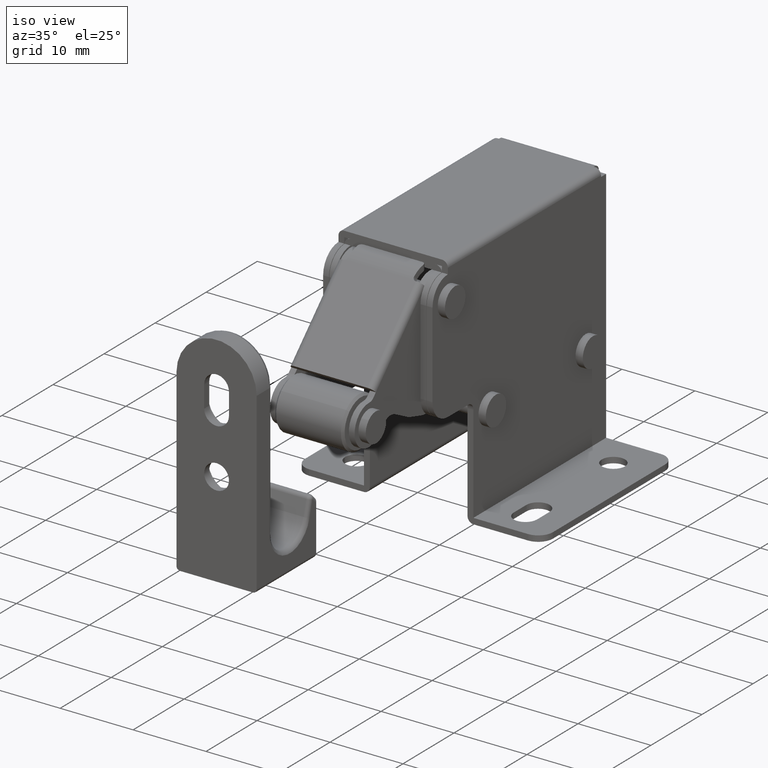
[diagram: clean part render]
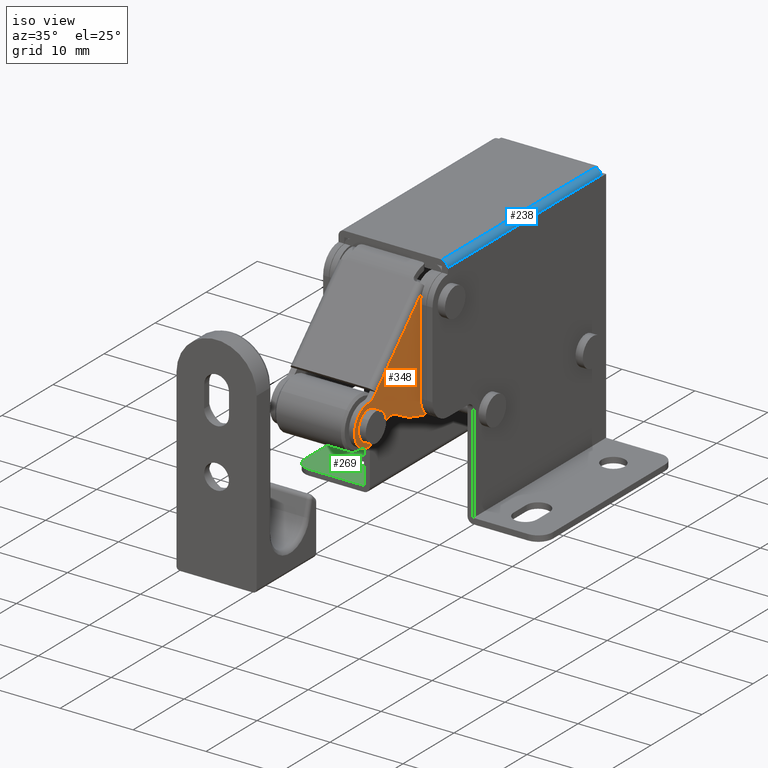
[diagram: same view with three faces highlighted in distinct colors, each labeled with its STEP entity id]
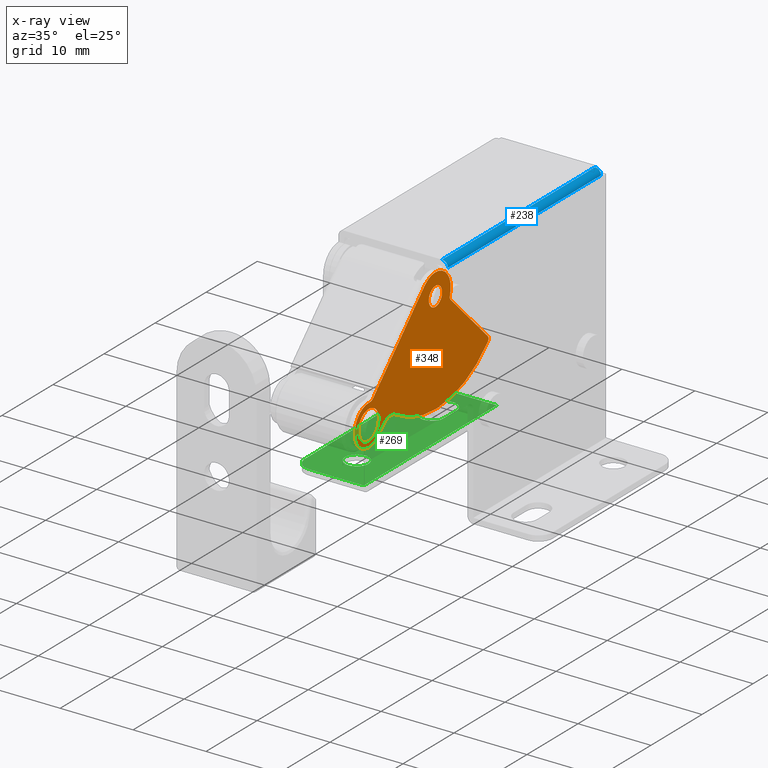
[diagram: x-ray of the same camera — body ghosted, the three highlighted faces saturated]
A machine part, iso view with three faces highlighted in distinct colors.
The next image is the same camera in x-ray (body ghosted, the three faces saturated) — at least one of them is partly hidden behind the body in this view.
Their STEP definitions:

[orange] entity #348 — the highlighted planar face has unit normal (-1, -0, -0).
#348=ADVANCED_FACE('',(#1792,#1793,#1794),#1791,.F.);
#1791=PLANE('',#4073);
#1792=FACE_OUTER_BOUND('',#4074,.T.);
#1793=FACE_BOUND('',#4075,.T.);
#1794=FACE_BOUND('',#4076,.T.);
#4070=CARTESIAN_POINT('',(5.80000000000E+00,-6.71192456954E+00,-1.80209946678E+01));
#4071=DIRECTION('',(-1.00000000000E+00,0.00000000000E+00,0.00000000000E+00));
#4072=DIRECTION('',(0.00000000000E+00,0.00000000000E+00,1.00000000000E+00));
#4073=AXIS2_PLACEMENT_3D('',#4070,#4071,#4072);
#4074=EDGE_LOOP('',(#5729,#5730,#5731,#5732,#5733,#5734,#5735,#5736,#5737,#5738,#5739));
#4075=EDGE_LOOP('',(#5740,#5741));
#4076=EDGE_LOOP('',(#5742,#5743));
#5729=ORIENTED_EDGE('',*,*,#6878,.T.);
#5730=ORIENTED_EDGE('',*,*,#6865,.T.);
#5731=ORIENTED_EDGE('',*,*,#6879,.T.);
#5732=ORIENTED_EDGE('',*,*,#6861,.T.);
#5733=ORIENTED_EDGE('',*,*,#6880,.T.);
#5734=ORIENTED_EDGE('',*,*,#6852,.T.);
#5735=ORIENTED_EDGE('',*,*,#6881,.T.);
#5736=ORIENTED_EDGE('',*,*,#6844,.T.);
#5737=ORIENTED_EDGE('',*,*,#6882,.T.);
#5738=ORIENTED_EDGE('',*,*,#6883,.T.);
#5739=ORIENTED_EDGE('',*,*,#6855,.T.);
#5740=ORIENTED_EDGE('',*,*,#6884,.F.);
#5741=ORIENTED_EDGE('',*,*,#6885,.F.);
#5742=ORIENTED_EDGE('',*,*,#6886,.T.);
#5743=ORIENTED_EDGE('',*,*,#6887,.T.);
#6844=EDGE_CURVE('',#9506,#9499,#9507,.T.);
#6852=EDGE_CURVE('',#9538,#9552,#9559,.T.);
#6855=EDGE_CURVE('',#9580,#9573,#9581,.T.);
#6861=EDGE_CURVE('',#9620,#9613,#9621,.T.);
#6865=EDGE_CURVE('',#9648,#9641,#9649,.T.);
#6878=EDGE_CURVE('',#9573,#9648,#9735,.T.);
#6879=EDGE_CURVE('',#9641,#9620,#9741,.T.);
#6880=EDGE_CURVE('',#9613,#9538,#9747,.T.);
#6881=EDGE_CURVE('',#9552,#9506,#9753,.T.);
#6882=EDGE_CURVE('',#9499,#9759,#9760,.T.);
#6883=EDGE_CURVE('',#9759,#9580,#9766,.T.);
#6884=EDGE_CURVE('',#9772,#9773,#9774,.T.);
#6885=EDGE_CURVE('',#9773,#9772,#9780,.T.);
#6886=EDGE_CURVE('',#9786,#9787,#9788,.T.);
#6887=EDGE_CURVE('',#9787,#9786,#9794,.T.);
#9499=VERTEX_POINT('',#13408);
#9506=VERTEX_POINT('',#13412);
#9507=CIRCLE('',#13416,1.00000000000E+00);
#9538=VERTEX_POINT('',#13432);
#9552=VERTEX_POINT('',#13441);
#9559=LINE('',#13446,#13447);
#9573=VERTEX_POINT('',#13455);
#9580=VERTEX_POINT('',#13459);
#9581=CIRCLE('',#13463,2.00000000000E+00);
#9613=VERTEX_POINT('',#13479);
#9620=VERTEX_POINT('',#13483);
#9621=CIRCLE('',#13487,5.00000000000E-01);
#9641=VERTEX_POINT('',#13497);
#9648=VERTEX_POINT('',#13501);
#9649=CIRCLE('',#13505,5.00000000000E-01);
#9735=CIRCLE('',#13561,1.40000000000E+01);
#9741=LINE('',#13562,#13563);
#9747=CIRCLE('',#13568,3.00000000000E+00);
#9753=LINE('',#13569,#13570);
#9759=VERTEX_POINT('',#13572);
#9760=CIRCLE('',#13576,2.75000000000E+00);
#9766=LINE('',#13577,#13578);
#9772=VERTEX_POINT('',#13580);
#9773=VERTEX_POINT('',#13581);
#9774=CIRCLE('',#13585,1.30000000000E+00);
#9780=CIRCLE('',#13589,1.30000000000E+00);
#9786=VERTEX_POINT('',#13590);
#9787=VERTEX_POINT('',#13591);
#9788=CIRCLE('',#13595,2.00000000000E+00);
#9794=CIRCLE('',#13599,2.00000000000E+00);
#13408=CARTESIAN_POINT('',(5.80000000000E+00,2.04972897937E+00,1.83333333333E+00));
#13412=CARTESIAN_POINT('',(5.80000000000E+00,2.79508497187E+00,1.50000000000E+00));
#13413=CARTESIAN_POINT('',(5.80000000000E+00,2.79508497187E+00,2.50000000000E+00));
#13414=DIRECTION('',(-1.00000000000E+00,0.00000000000E+00,0.00000000000E+00));
#13415=DIRECTION('',(-0.00000000000E+00,-0.00000000000E+00,-1.00000000000E+00));
#13416=AXIS2_PLACEMENT_3D('',#13413,#13414,#13415);
#13432=CARTESIAN_POINT('',(5.80000000000E+00,1.70000000000E+01,1.50000000000E+00));
#13441=CARTESIAN_POINT('',(5.80000000000E+00,3.50000000000E+00,1.50000000000E+00));
#13446=CARTESIAN_POINT('',(5.80000000000E+00,1.70000000000E+01,1.50000000000E+00));
#13447=VECTOR('',#13448,1.35000000000E+01);
#13448=DIRECTION('',(0.00000000000E+00,-1.00000000000E+00,0.00000000000E+00));
#13455=CARTESIAN_POINT('',(5.80000000000E+00,3.29186059534E+00,-4.34375000000E+00));
#13459=CARTESIAN_POINT('',(5.80000000000E+00,1.33355496611E+00,-2.75000000000E+00));
#13460=CARTESIAN_POINT('',(5.80000000000E+00,1.33355496611E+00,-4.75000000000E+00));
#13461=DIRECTION('',(-1.00000000000E+00,0.00000000000E+00,0.00000000000E+00));
#13462=DIRECTION('',(-0.00000000000E+00,-0.00000000000E+00,-1.00000000000E+00));
#13463=AXIS2_PLACEMENT_3D('',#13460,#13461,#13462);
#13479=CARTESIAN_POINT('',(5.80000000000E+00,1.82857142857E+01,-4.21052370872E+00));
#13483=CARTESIAN_POINT('',(5.80000000000E+00,1.80000000000E+01,-4.66227766017E+00));
#13484=CARTESIAN_POINT('',(5.80000000000E+00,1.85000000000E+01,-4.66227766017E+00));
#13485=DIRECTION('',(-1.00000000000E+00,0.00000000000E+00,0.00000000000E+00));
#13486=DIRECTION('',(-0.00000000000E+00,-0.00000000000E+00,-1.00000000000E+00));
#13487=AXIS2_PLACEMENT_3D('',#13484,#13485,#13486);
#13497=CARTESIAN_POINT('',(5.80000000000E+00,1.80000000000E+01,-1.49907375632E+01));
#13501=CARTESIAN_POINT('',(5.80000000000E+00,1.75185185185E+01,-1.54903945100E+01));
#13502=CARTESIAN_POINT('',(5.80000000000E+00,1.75000000000E+01,-1.49907375632E+01));
#13503=DIRECTION('',(1.00000000000E+00,0.00000000000E+00,-0.00000000000E+00));
#13504=DIRECTION('',(-0.00000000000E+00,-0.00000000000E+00,-1.00000000000E+00));
#13505=AXIS2_PLACEMENT_3D('',#13502,#13503,#13504);
#13558=CARTESIAN_POINT('',(5.80000000000E+00,1.70000000000E+01,-1.50000000000E+00));
#13559=DIRECTION('',(1.00000000000E+00,0.00000000000E+00,0.00000000000E+00));
#13560=DIRECTION('',(-0.00000000000E+00,-0.00000000000E+00,1.00000000000E+00));
#13561=AXIS2_PLACEMENT_3D('',#13558,#13559,#13560);
#13562=CARTESIAN_POINT('',(5.80000000000E+00,1.80000000000E+01,-1.49907375632E+01));
#13563=VECTOR('',#13564,1.03284599031E+01);
#13564=DIRECTION('',(0.00000000000E+00,0.00000000000E+00,1.00000000000E+00));
#13565=CARTESIAN_POINT('',(5.80000000000E+00,1.70000000000E+01,-1.50000000000E+00));
#13566=DIRECTION('',(1.00000000000E+00,0.00000000000E+00,0.00000000000E+00));
#13567=DIRECTION('',(-0.00000000000E+00,-0.00000000000E+00,1.00000000000E+00));
#13568=AXIS2_PLACEMENT_3D('',#13565,#13566,#13567);
#13569=CARTESIAN_POINT('',(5.80000000000E+00,3.50000000000E+00,1.50000000000E+00));
#13570=VECTOR('',#13571,7.04915028125E-01);
#13571=DIRECTION('',(0.00000000000E+00,-1.00000000000E+00,0.00000000000E+00));
#13572=CARTESIAN_POINT('',(5.80000000000E+00,-5.05166804648E-16,-2.75000000000E+00));
#13573=CARTESIAN_POINT('',(5.80000000000E+00,0.00000000000E+00,0.00000000000E+00));
#13574=DIRECTION('',(1.00000000000E+00,0.00000000000E+00,0.00000000000E+00));
#13575=DIRECTION('',(-0.00000000000E+00,7.45355992500E-01,6.66666666667E-01));
#13576=AXIS2_PLACEMENT_3D('',#13573,#13574,#13575);
#13577=CARTESIAN_POINT('',(5.80000000000E+00,-5.05166804648E-16,-2.75000000000E+00));
#13578=VECTOR('',#13579,1.33355496611E+00);
#13579=DIRECTION('',(0.00000000000E+00,1.00000000000E+00,0.00000000000E+00));
#13580=CARTESIAN_POINT('',(5.79999999999E+00,1.70000000000E+01,-2.80000000000E+00));
#13581=CARTESIAN_POINT('',(5.79999999999E+00,1.70000000000E+01,-2.00000000000E-01));
#13582=CARTESIAN_POINT('',(5.79999999999E+00,1.70000000000E+01,-1.50000000000E+00));
#13583=DIRECTION('',(1.00000000000E+00,0.00000000000E+00,-0.00000000000E+00));
#13584=DIRECTION('',(0.00000000000E+00,-1.22460635382E-16,1.00000000000E+00));
#13585=AXIS2_PLACEMENT_3D('',#13582,#13583,#13584);
#13586=CARTESIAN_POINT('',(5.79999999999E+00,1.70000000000E+01,-1.50000000000E+00));
#13587=DIRECTION('',(1.00000000000E+00,0.00000000000E+00,-0.00000000000E+00));
#13588=DIRECTION('',(0.00000000000E+00,-1.22460635382E-16,1.00000000000E+00));
#13589=AXIS2_PLACEMENT_3D('',#13586,#13587,#13588);
#13590=CARTESIAN_POINT('',(5.80000000000E+00,0.00000000000E+00,2.00000000000E+00));
#13591=CARTESIAN_POINT('',(5.80000000000E+00,2.22044604925E-16,-2.00000000000E+00));
#13592=CARTESIAN_POINT('',(5.80000000000E+00,0.00000000000E+00,0.00000000000E+00));
#13593=DIRECTION('',(-1.00000000000E+00,0.00000000000E+00,0.00000000000E+00));
#13594=DIRECTION('',(0.00000000000E+00,-1.22460635382E-16,1.00000000000E+00));
#13595=AXIS2_PLACEMENT_3D('',#13592,#13593,#13594);
#13596=CARTESIAN_POINT('',(5.80000000000E+00,0.00000000000E+00,0.00000000000E+00));
#13597=DIRECTION('',(-1.00000000000E+00,0.00000000000E+00,0.00000000000E+00));
#13598=DIRECTION('',(0.00000000000E+00,-1.22460635382E-16,1.00000000000E+00));
#13599=AXIS2_PLACEMENT_3D('',#13596,#13597,#13598);

[blue] entity #238 — the highlighted cylindrical surface (edge-blend (fillet) strip) has radius 0.8 mm, axis along (-0, -1, -0).
#238=ADVANCED_FACE('',(#670),#669,.T.);
#669=CYLINDRICAL_SURFACE('',#3501,8.00000000000E-01);
#670=FACE_OUTER_BOUND('',#3502,.T.);
#3498=CARTESIAN_POINT('',(6.70000000000E+00,-9.69000000000E+02,4.00000000000E+00));
#3499=DIRECTION('',(-0.00000000000E+00,-1.00000000000E+00,-0.00000000000E+00));
#3500=DIRECTION('',(-0.00000000000E+00,0.00000000000E+00,-1.00000000000E+00));
#3501=AXIS2_PLACEMENT_3D('',#3498,#3499,#3500);
#3502=EDGE_LOOP('',(#5182,#5183,#5184,#5185));
#5182=ORIENTED_EDGE('',*,*,#6611,.F.);
#5183=ORIENTED_EDGE('',*,*,#6612,.T.);
#5184=ORIENTED_EDGE('',*,*,#6613,.F.);
#5185=ORIENTED_EDGE('',*,*,#6614,.F.);
#6611=EDGE_CURVE('',#7963,#7964,#7965,.T.);
#6612=EDGE_CURVE('',#7963,#7971,#7972,.T.);
#6613=EDGE_CURVE('',#7978,#7971,#7979,.T.);
#6614=EDGE_CURVE('',#7964,#7978,#7985,.T.);
#7963=VERTEX_POINT('',#12488);
#7964=VERTEX_POINT('',#12489);
#7965=LINE('',#12490,#12491);
#7971=VERTEX_POINT('',#12493);
#7972=CIRCLE('',#12497,8.00000000000E-01);
#7978=VERTEX_POINT('',#12498);
#7979=LINE('',#12499,#12500);
#7985=CIRCLE('',#12505,8.00000000000E-01);
#12488=CARTESIAN_POINT('',(7.50000000000E+00,3.00000000000E+01,4.00000000000E+00));
#12489=CARTESIAN_POINT('',(7.50000000000E+00,1.23723253929E-12,4.00000000000E+00));
#12490=CARTESIAN_POINT('',(7.50000000000E+00,3.00000000000E+01,4.00000000000E+00));
#12491=VECTOR('',#12492,3.00000000000E+01);
#12492=DIRECTION('',(0.00000000000E+00,-1.00000000000E+00,0.00000000000E+00));
#12493=CARTESIAN_POINT('',(6.70000000000E+00,3.00000000000E+01,4.80000000000E+00));
#12494=CARTESIAN_POINT('',(6.70000000000E+00,3.00000000000E+01,4.00000000000E+00));
#12495=DIRECTION('',(0.00000000000E+00,-1.00000000000E+00,0.00000000000E+00));
#12496=DIRECTION('',(-0.00000000000E+00,-0.00000000000E+00,-1.00000000000E+00));
#12497=AXIS2_PLACEMENT_3D('',#12494,#12495,#12496);
#12498=CARTESIAN_POINT('',(6.70000000000E+00,1.81898940355E-12,4.80000000000E+00));
#12499=CARTESIAN_POINT('',(6.70000000000E+00,1.70530256582E-12,4.80000000000E+00));
#12500=VECTOR('',#12501,3.00000000000E+01);
#12501=DIRECTION('',(0.00000000000E+00,1.00000000000E+00,0.00000000000E+00));
#12502=CARTESIAN_POINT('',(6.70000000000E+00,1.22124532709E-12,4.00000000000E+00));
#12503=DIRECTION('',(0.00000000000E+00,-1.00000000000E+00,8.17124146124E-13));
#12504=DIRECTION('',(1.00000000000E+00,-8.75850345984E-28,-1.07186937277E-15));
#12505=AXIS2_PLACEMENT_3D('',#12502,#12503,#12504);

[green] entity #269 — the highlighted planar face has unit normal (0, 0, -1).
#269=ADVANCED_FACE('',(#985,#986,#987),#984,.F.);
#984=PLANE('',#3661);
#985=FACE_OUTER_BOUND('',#3662,.T.);
#986=FACE_BOUND('',#3663,.T.);
#987=FACE_BOUND('',#3664,.T.);
#3658=CARTESIAN_POINT('',(-6.55000000000E+00,2.40000000000E+00,-2.89000000000E+01));
#3659=DIRECTION('',(0.00000000000E+00,0.00000000000E+00,-1.00000000000E+00));
#3660=DIRECTION('',(-1.00000000000E+00,0.00000000000E+00,0.00000000000E+00));
#3661=AXIS2_PLACEMENT_3D('',#3658,#3659,#3660);
#3662=EDGE_LOOP('',(#5365,#5366,#5367,#5368,#5369,#5370));
#3663=EDGE_LOOP('',(#5371,#5372));
#3664=EDGE_LOOP('',(#5373,#5374,#5375,#5376));
#5365=ORIENTED_EDGE('',*,*,#6576,.T.);
#5366=ORIENTED_EDGE('',*,*,#6625,.T.);
#5367=ORIENTED_EDGE('',*,*,#6698,.F.);
#5368=ORIENTED_EDGE('',*,*,#6620,.T.);
#5369=ORIENTED_EDGE('',*,*,#6699,.T.);
#5370=ORIENTED_EDGE('',*,*,#6506,.T.);
#5371=ORIENTED_EDGE('',*,*,#6700,.F.);
#5372=ORIENTED_EDGE('',*,*,#6701,.F.);
#5373=ORIENTED_EDGE('',*,*,#6642,.F.);
#5374=ORIENTED_EDGE('',*,*,#6639,.F.);
#5375=ORIENTED_EDGE('',*,*,#6636,.F.);
#5376=ORIENTED_EDGE('',*,*,#6632,.F.);
#6506=EDGE_CURVE('',#7241,#7234,#7242,.T.);
#6576=EDGE_CURVE('',#7234,#7724,#7731,.T.);
#6620=EDGE_CURVE('',#8026,#8019,#8027,.T.);
#6625=EDGE_CURVE('',#7724,#8057,#8058,.T.);
#6632=EDGE_CURVE('',#8101,#8102,#8103,.T.);
#6636=EDGE_CURVE('',#8102,#8129,#8130,.T.);
#6639=EDGE_CURVE('',#8129,#8149,#8150,.T.);
#6642=EDGE_CURVE('',#8149,#8101,#8169,.T.);
#6698=EDGE_CURVE('',#8026,#8057,#8532,.T.);
#6699=EDGE_CURVE('',#8019,#7241,#8538,.T.);
#6700=EDGE_CURVE('',#8544,#8545,#8546,.T.);
#6701=EDGE_CURVE('',#8545,#8544,#8552,.T.);
#7234=VERTEX_POINT('',#12027);
#7241=VERTEX_POINT('',#12031);
#7242=LINE('',#12032,#12033);
#7724=VERTEX_POINT('',#12345);
#7731=LINE('',#12349,#12350);
#8019=VERTEX_POINT('',#12525);
#8026=VERTEX_POINT('',#12529);
#8027=CIRCLE('',#12533,2.00000000000E+00);
#8057=VERTEX_POINT('',#12546);
#8058=CIRCLE('',#12550,2.00000000000E+00);
#8101=VERTEX_POINT('',#12571);
#8102=VERTEX_POINT('',#12572);
#8103=CIRCLE('',#12576,1.60000000000E+00);
#8129=VERTEX_POINT('',#12589);
#8130=LINE('',#12590,#12591);
#8149=VERTEX_POINT('',#12600);
#8150=CIRCLE('',#12604,1.60000000000E+00);
#8169=LINE('',#12613,#12614);
#8532=LINE('',#12820,#12821);
#8538=LINE('',#12823,#12824);
#8544=VERTEX_POINT('',#12826);
#8545=VERTEX_POINT('',#12827);
#8546=CIRCLE('',#12831,1.60000000000E+00);
#8552=CIRCLE('',#12835,1.60000000000E+00);
#12027=CARTESIAN_POINT('',(-7.50000000000E+00,3.10000000000E+01,-2.89000000000E+01));
#12031=CARTESIAN_POINT('',(-7.50000000000E+00,5.00000000000E+00,-2.89000000000E+01));
#12032=CARTESIAN_POINT('',(-7.50000000000E+00,5.00000000000E+00,-2.89000000000E+01));
#12033=VECTOR('',#12034,2.60000000000E+01);
#12034=DIRECTION('',(0.00000000000E+00,1.00000000000E+00,0.00000000000E+00));
#12345=CARTESIAN_POINT('',(-1.50000000000E+01,3.10000000000E+01,-2.89000000000E+01));
#12349=CARTESIAN_POINT('',(-7.50000000000E+00,3.10000000000E+01,-2.89000000000E+01));
#12350=VECTOR('',#12351,7.50000000000E+00);
#12351=DIRECTION('',(-1.00000000000E+00,0.00000000000E+00,0.00000000000E+00));
#12525=CARTESIAN_POINT('',(-1.50000000000E+01,5.00000000000E+00,-2.89000000000E+01));
#12529=CARTESIAN_POINT('',(-1.70000000000E+01,7.00000000000E+00,-2.89000000000E+01));
#12530=CARTESIAN_POINT('',(-1.50000000000E+01,7.00000000000E+00,-2.89000000000E+01));
#12531=DIRECTION('',(0.00000000000E+00,-0.00000000000E+00,1.00000000000E+00));
#12532=DIRECTION('',(1.00000000000E+00,-0.00000000000E+00,-0.00000000000E+00));
#12533=AXIS2_PLACEMENT_3D('',#12530,#12531,#12532);
#12546=CARTESIAN_POINT('',(-1.70000000000E+01,2.90000000000E+01,-2.89000000000E+01));
#12547=CARTESIAN_POINT('',(-1.50000000000E+01,2.90000000000E+01,-2.89000000000E+01));
#12548=DIRECTION('',(0.00000000000E+00,-0.00000000000E+00,1.00000000000E+00));
#12549=DIRECTION('',(1.00000000000E+00,-0.00000000000E+00,-0.00000000000E+00));
#12550=AXIS2_PLACEMENT_3D('',#12547,#12548,#12549);
#12571=CARTESIAN_POINT('',(-1.36000000000E+01,2.47500000000E+01,-2.89000000000E+01));
#12572=CARTESIAN_POINT('',(-1.04000000000E+01,2.47500000000E+01,-2.89000000000E+01));
#12573=CARTESIAN_POINT('',(-1.20000000000E+01,2.47500000000E+01,-2.89000000000E+01));
#12574=DIRECTION('',(0.00000000000E+00,-0.00000000000E+00,1.00000000000E+00));
#12575=DIRECTION('',(1.00000000000E+00,-0.00000000000E+00,-0.00000000000E+00));
#12576=AXIS2_PLACEMENT_3D('',#12573,#12574,#12575);
#12589=CARTESIAN_POINT('',(-1.04000000000E+01,2.72500000000E+01,-2.89000000000E+01));
#12590=CARTESIAN_POINT('',(-1.04000000000E+01,2.47500000000E+01,-2.89000000000E+01));
#12591=VECTOR('',#12592,2.50000000000E+00);
#12592=DIRECTION('',(0.00000000000E+00,1.00000000000E+00,0.00000000000E+00));
#12600=CARTESIAN_POINT('',(-1.36000000000E+01,2.72500000000E+01,-2.89000000000E+01));
#12601=CARTESIAN_POINT('',(-1.20000000000E+01,2.72500000000E+01,-2.89000000000E+01));
#12602=DIRECTION('',(0.00000000000E+00,-0.00000000000E+00,1.00000000000E+00));
#12603=DIRECTION('',(1.00000000000E+00,-0.00000000000E+00,-0.00000000000E+00));
#12604=AXIS2_PLACEMENT_3D('',#12601,#12602,#12603);
#12613=CARTESIAN_POINT('',(-1.36000000000E+01,2.72500000000E+01,-2.89000000000E+01));
#12614=VECTOR('',#12615,2.50000000000E+00);
#12615=DIRECTION('',(0.00000000000E+00,-1.00000000000E+00,0.00000000000E+00));
#12820=CARTESIAN_POINT('',(-1.70000000000E+01,7.00000000000E+00,-2.89000000000E+01));
#12821=VECTOR('',#12822,2.20000000000E+01);
#12822=DIRECTION('',(0.00000000000E+00,1.00000000000E+00,0.00000000000E+00));
#12823=CARTESIAN_POINT('',(-1.50000000000E+01,5.00000000000E+00,-2.89000000000E+01));
#12824=VECTOR('',#12825,7.50000000000E+00);
#12825=DIRECTION('',(1.00000000000E+00,0.00000000000E+00,0.00000000000E+00));
#12826=CARTESIAN_POINT('',(-1.04000000000E+01,1.00000000000E+01,-2.89000000000E+01));
#12827=CARTESIAN_POINT('',(-1.36000000000E+01,1.00000000000E+01,-2.89000000000E+01));
#12828=CARTESIAN_POINT('',(-1.20000000000E+01,1.00000000000E+01,-2.89000000000E+01));
#12829=DIRECTION('',(0.00000000000E+00,0.00000000000E+00,1.00000000000E+00));
#12830=DIRECTION('',(-1.00000000000E+00,-1.22460635382E-16,0.00000000000E+00));
#12831=AXIS2_PLACEMENT_3D('',#12828,#12829,#12830);
#12832=CARTESIAN_POINT('',(-1.20000000000E+01,1.00000000000E+01,-2.89000000000E+01));
#12833=DIRECTION('',(0.00000000000E+00,0.00000000000E+00,1.00000000000E+00));
#12834=DIRECTION('',(-1.00000000000E+00,-1.22460635382E-16,0.00000000000E+00));
#12835=AXIS2_PLACEMENT_3D('',#12832,#12833,#12834);